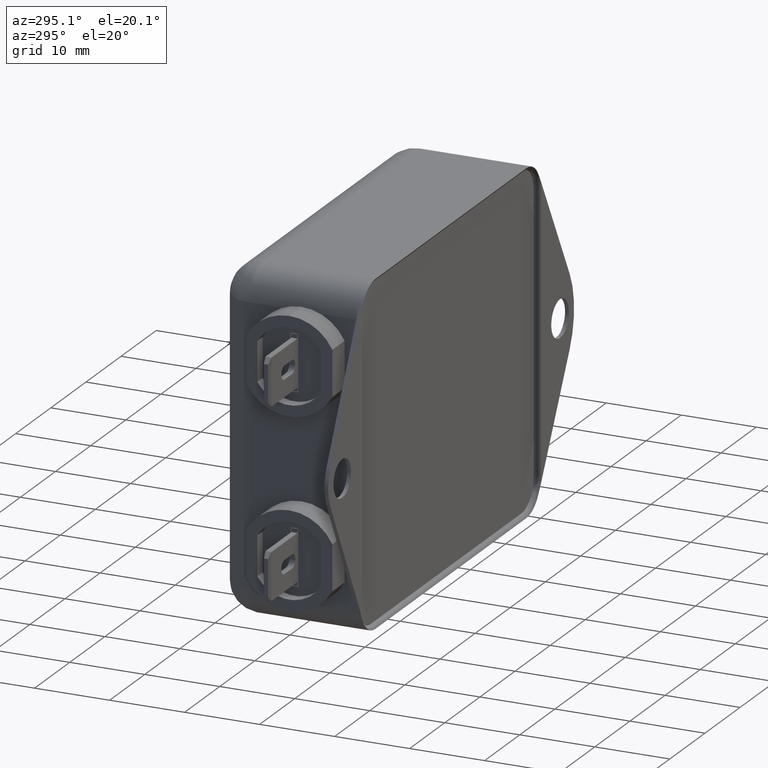
[diagram: clean part render]
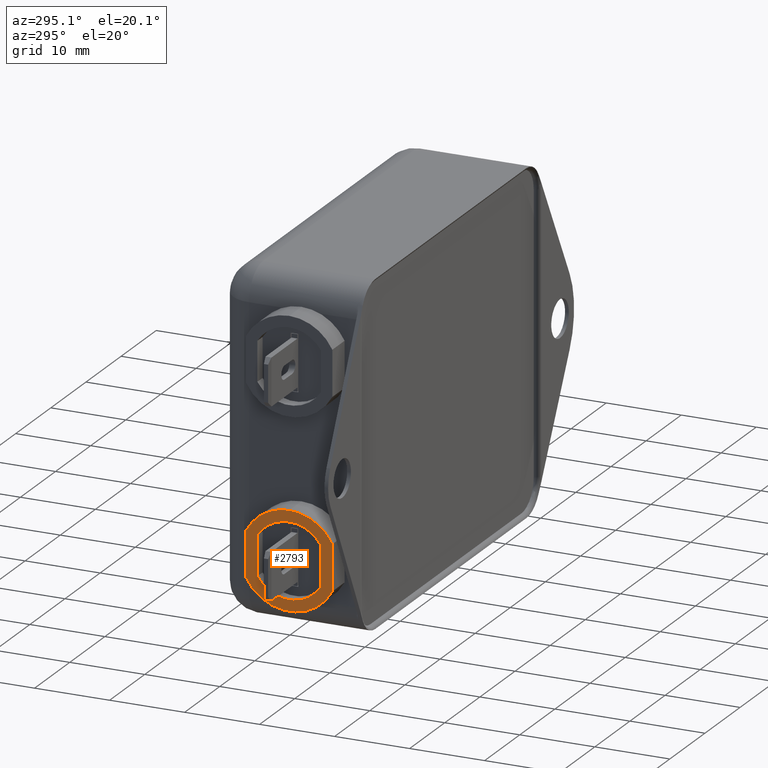
[diagram: same view with one face highlighted and labeled with its STEP entity id]
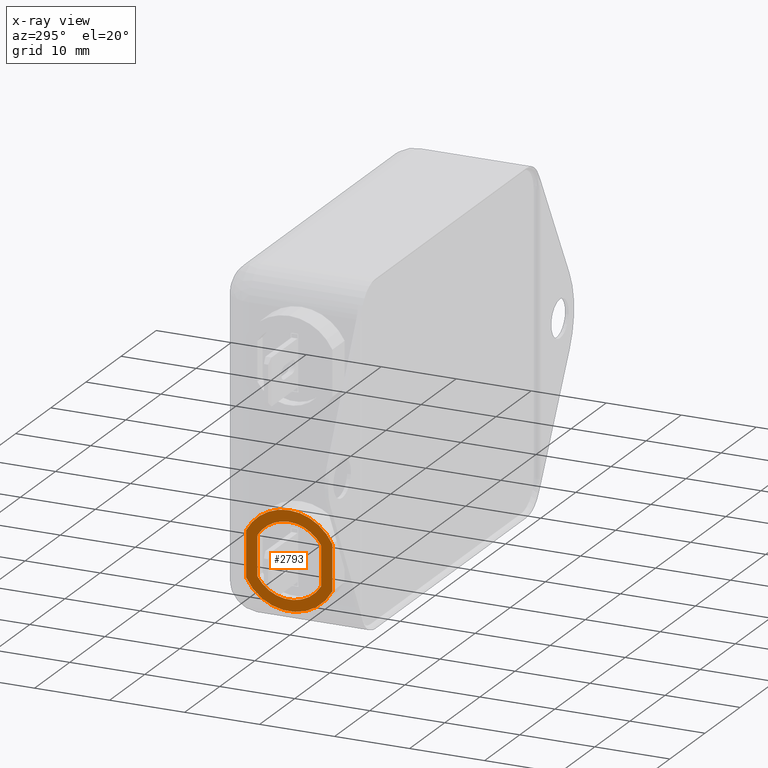
[diagram: x-ray of the same camera — body ghosted, the highlighted face saturated]
A machine part, auxiliary view. The second image highlights one B-rep face of the part: STEP entity #2793.
The next image is the same camera in x-ray: the body ghosted, the highlighted face saturated — about 0% of this face is hidden behind the body in this view.
In plain terms, the highlighted planar face has unit normal (1, -0, -0).
Its self-contained STEP definition (entity closure, byte-faithful):
#2793=ADVANCED_FACE('NONE',(#5884,#5885),#5886,.F.);
#2851=EDGE_CURVE('NONE',#5971,#5974,#5975,.T.);
#2859=EDGE_CURVE('NONE',#5983,#5986,#5987,.T.);
#2865=EDGE_CURVE('NONE',#5991,#5995,#5996,.T.);
#2871=EDGE_CURVE('NONE',#6003,#6004,#6005,.T.);
#2957=EDGE_CURVE('NONE',#5986,#5991,#6122,.T.);
#2983=EDGE_CURVE('NONE',#6004,#6153,#6154,.T.);
#2991=EDGE_CURVE('NONE',#6161,#5983,#6164,.T.);
#2993=EDGE_CURVE('NONE',#6161,#5995,#6166,.T.);
#2995=EDGE_CURVE('NONE',#5974,#6003,#6168,.T.);
#2997=EDGE_CURVE('NONE',#6153,#5971,#6170,.T.);
#5884=FACE_OUTER_BOUND('',#10170,.T.);
#5885=FACE_BOUND('',#10171,.T.);
#5886=PLANE('',#10172);
#5971=VERTEX_POINT('NONE',#10279);
#5974=VERTEX_POINT('NONE',#10284);
#5975=CIRCLE('',#10285,5.0);
#5983=VERTEX_POINT('NONE',#10297);
#5986=VERTEX_POINT('NONE',#10302);
#5987=CIRCLE('',#10303,6.5);
#5991=VERTEX_POINT('NONE',#10310);
#5995=VERTEX_POINT('NONE',#10316);
#5996=CIRCLE('',#10317,6.5);
#6003=VERTEX_POINT('NONE',#10328);
#6004=VERTEX_POINT('NONE',#10329);
#6005=CIRCLE('',#10330,5.0);
#6122=LINE('',#10530,#10531);
#6153=VERTEX_POINT('NONE',#10587);
#6154=LINE('',#10588,#10589);
#6161=VERTEX_POINT('NONE',#10601);
#6164=CIRCLE('',#10606,6.5);
#6166=LINE('',#10609,#10610);
#6168=LINE('',#10613,#10614);
#6170=CIRCLE('',#10617,5.0);
#10170=EDGE_LOOP('',(#15084,#15085,#15086,#15087,#15088));
#10171=EDGE_LOOP('',(#15089,#15090,#15091,#15092,#15093));
#10172=AXIS2_PLACEMENT_3D('',#15094,#15095,#15096);
#10279=CARTESIAN_POINT('',(-5.0,0.0,0.0));
#10284=CARTESIAN_POINT('',(-2.63391343821319,4.25,0.0));
#10285=AXIS2_PLACEMENT_3D('',#15264,#15265,#15266);
#10297=CARTESIAN_POINT('',(-6.5,0.0,0.0));
#10302=CARTESIAN_POINT('',(-3.03108891324554,-5.75,0.0));
#10303=AXIS2_PLACEMENT_3D('',#15272,#15273,#15274);
#10310=CARTESIAN_POINT('',(3.03108891324554,-5.75,0.0));
#10316=CARTESIAN_POINT('',(3.03108891324554,5.75,0.0));
#10317=AXIS2_PLACEMENT_3D('',#15277,#15278,#15279);
#10328=CARTESIAN_POINT('',(2.63391343821319,4.25,0.0));
#10329=CARTESIAN_POINT('',(2.63391343821319,-4.25,0.0));
#10330=AXIS2_PLACEMENT_3D('',#15284,#15285,#15286);
#10530=CARTESIAN_POINT('',(0.0,-5.75,0.0));
#10531=VECTOR('',#15333,1.0);
#10587=CARTESIAN_POINT('',(-2.63391343821319,-4.25,0.0));
#10588=CARTESIAN_POINT('',(2.63391343821319,-4.25,0.0));
#10589=VECTOR('',#15346,1.0);
#10601=CARTESIAN_POINT('',(-3.03108891324554,5.75,0.0));
#10606=AXIS2_PLACEMENT_3D('',#15350,#15351,#15352);
#10609=CARTESIAN_POINT('',(0.0,5.75,0.0));
#10610=VECTOR('',#15353,1.0);
#10613=CARTESIAN_POINT('',(2.63391343821319,4.25,0.0));
#10614=VECTOR('',#15354,1.0);
#10617=AXIS2_PLACEMENT_3D('',#15355,#15356,#15357);
#15084=ORIENTED_EDGE('',*,*,#2957,.F.);
#15085=ORIENTED_EDGE('',*,*,#2859,.F.);
#15086=ORIENTED_EDGE('',*,*,#2991,.F.);
#15087=ORIENTED_EDGE('',*,*,#2993,.T.);
#15088=ORIENTED_EDGE('',*,*,#2865,.F.);
#15089=ORIENTED_EDGE('',*,*,#2983,.F.);
#15090=ORIENTED_EDGE('',*,*,#2871,.F.);
#15091=ORIENTED_EDGE('',*,*,#2995,.F.);
#15092=ORIENTED_EDGE('',*,*,#2851,.F.);
#15093=ORIENTED_EDGE('',*,*,#2997,.F.);
#15094=CARTESIAN_POINT('',(0.0,0.0,0.0));
#15095=DIRECTION('',(0.0,0.0,1.0));
#15096=DIRECTION('',(1.0,0.0,0.0));
#15264=CARTESIAN_POINT('',(0.0,0.0,0.0));
#15265=DIRECTION('',(0.0,0.0,-1.0));
#15266=DIRECTION('',(-1.0,0.0,0.0));
#15272=CARTESIAN_POINT('',(0.0,0.0,0.0));
#15273=DIRECTION('',(0.0,0.0,1.0));
#15274=DIRECTION('',(1.0,0.0,0.0));
#15277=CARTESIAN_POINT('',(0.0,0.0,0.0));
#15278=DIRECTION('',(0.0,0.0,1.0));
#15279=DIRECTION('',(1.0,0.0,0.0));
#15284=CARTESIAN_POINT('',(0.0,0.0,0.0));
#15285=DIRECTION('',(0.0,0.0,-1.0));
#15286=DIRECTION('',(-1.0,0.0,0.0));
#15333=DIRECTION('',(1.0,0.0,0.0));
#15346=DIRECTION('',(-1.0,0.0,0.0));
#15350=CARTESIAN_POINT('',(0.0,0.0,0.0));
#15351=DIRECTION('',(0.0,0.0,1.0));
#15352=DIRECTION('',(1.0,0.0,0.0));
#15353=DIRECTION('',(1.0,0.0,0.0));
#15354=DIRECTION('',(1.0,0.0,0.0));
#15355=CARTESIAN_POINT('',(0.0,0.0,0.0));
#15356=DIRECTION('',(0.0,0.0,-1.0));
#15357=DIRECTION('',(-1.0,0.0,0.0));